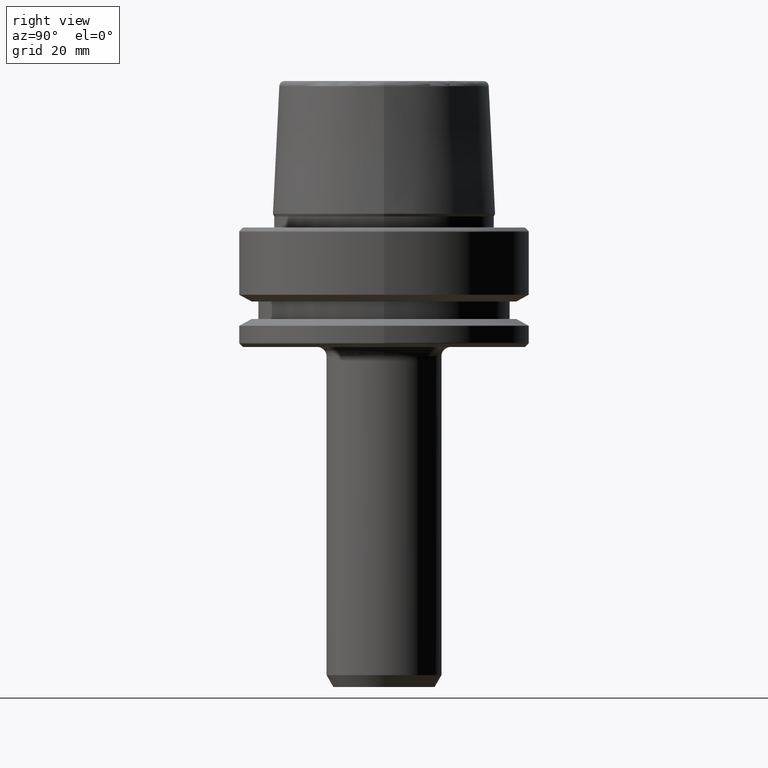
[diagram: clean part render]
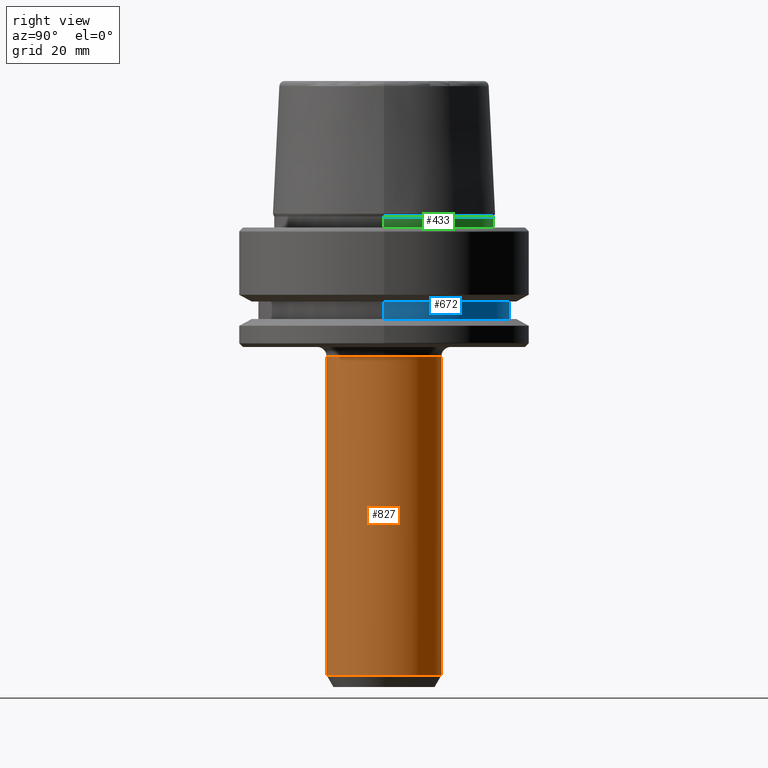
[diagram: same view with three faces highlighted in distinct colors, each labeled with its STEP entity id]
A machine part, right view with three faces highlighted in distinct colors.
Their STEP definitions:

[orange] entity #827 — the highlighted cylindrical surface (partial cylindrical patch) has radius 12.5 mm, axis along (-0, -0, -1).
#4 = VERTEX_POINT ( 'NONE', #817 ) ;
#117 = FACE_OUTER_BOUND ( 'NONE', #309, .T. ) ;
#132 = VECTOR ( 'NONE', #534, 1000.000000000000000 ) ;
#137 = DIRECTION ( 'NONE',  ( 0.0000000000000000000, 0.0000000000000000000, -1.000000000000000000 ) ) ;
#165 = DIRECTION ( 'NONE',  ( 0.0000000000000000000, 1.000000000000000000, 0.0000000000000000000 ) ) ;
#181 = VERTEX_POINT ( 'NONE', #1131 ) ;
#187 = CARTESIAN_POINT ( 'NONE',  ( 0.0000000000000000000, -4.964784320867598900E-017, -27.99999999999999600 ) ) ;
#188 = CIRCLE ( 'NONE', #872, 12.50000000000000000 ) ;
#261 = DIRECTION ( 'NONE',  ( -0.0000000000000000000, -2.482392160433822900E-017, -1.000000000000000000 ) ) ;
#269 = CARTESIAN_POINT ( 'NONE',  ( 0.0000000000000000000, 12.50000000000000000, -27.99999999999999600 ) ) ;
#309 = EDGE_LOOP ( 'NONE', ( #689, #843, #757, #357, #364 ) ) ;
#319 = AXIS2_PLACEMENT_3D ( 'NONE', #837, #755, #1254 ) ;
#357 = ORIENTED_EDGE ( 'NONE', *, *, #436, .F. ) ;
#364 = ORIENTED_EDGE ( 'NONE', *, *, #1138, .F. ) ;
#385 = DIRECTION ( 'NONE',  ( -0.0000000000000000000, -2.482392160433822900E-017, -1.000000000000000000 ) ) ;
#398 = LINE ( 'NONE', #550, #132 ) ;
#436 = EDGE_CURVE ( 'NONE', #587, #4, #447, .T. ) ;
#447 = CIRCLE ( 'NONE', #1048, 12.50000000000000200 ) ;
#534 = DIRECTION ( 'NONE',  ( -0.0000000000000000000, -2.482392160433822900E-017, -1.000000000000000000 ) ) ;
#550 = CARTESIAN_POINT ( 'NONE',  ( 1.530808498934191500E-015, -12.50000000000000200, -100.0000000000000000 ) ) ;
#587 = VERTEX_POINT ( 'NONE', #1227 ) ;
#596 = CYLINDRICAL_SURFACE ( 'NONE', #712, 12.50000000000000000 ) ;
#630 = EDGE_CURVE ( 'NONE', #797, #181, #188, .T. ) ;
#689 = ORIENTED_EDGE ( 'NONE', *, *, #630, .T. ) ;
#712 = AXIS2_PLACEMENT_3D ( 'NONE', #839, #385, #830 ) ;
#755 = DIRECTION ( 'NONE',  ( 0.0000000000000000000, 0.0000000000000000000, -1.000000000000000000 ) ) ;
#757 = ORIENTED_EDGE ( 'NONE', *, *, #975, .T. ) ;
#792 = CARTESIAN_POINT ( 'NONE',  ( 0.0000000000000000000, -1.772475758528297700E-015, -97.40192378864668400 ) ) ;
#797 = VERTEX_POINT ( 'NONE', #269 ) ;
#805 = CARTESIAN_POINT ( 'NONE',  ( 0.0000000000000000000, 12.49999999999999800, -100.0000000000000000 ) ) ;
#817 = CARTESIAN_POINT ( 'NONE',  ( 0.0000000000000000000, -12.50000000000000400, -97.40192378864668400 ) ) ;
#826 = CIRCLE ( 'NONE', #319, 12.50000000000000000 ) ;
#827 = ADVANCED_FACE ( 'NONE', ( #117 ), #596, .T. ) ;
#830 = DIRECTION ( 'NONE',  ( 0.0000000000000000000, 1.000000000000000000, 0.0000000000000000000 ) ) ;
#837 = CARTESIAN_POINT ( 'NONE',  ( 0.0000000000000000000, -4.964784320867598900E-017, -27.99999999999999600 ) ) ;
#839 = CARTESIAN_POINT ( 'NONE',  ( 0.0000000000000000000, -1.836970198721028800E-015, -100.0000000000000000 ) ) ;
#843 = ORIENTED_EDGE ( 'NONE', *, *, #1169, .T. ) ;
#872 = AXIS2_PLACEMENT_3D ( 'NONE', #187, #137, #1123 ) ;
#889 = VECTOR ( 'NONE', #985, 1000.000000000000000 ) ;
#975 = EDGE_CURVE ( 'NONE', #976, #4, #398, .T. ) ;
#976 = VERTEX_POINT ( 'NONE', #1081 ) ;
#985 = DIRECTION ( 'NONE',  ( -0.0000000000000000000, -2.482392160433822900E-017, -1.000000000000000000 ) ) ;
#1048 = AXIS2_PLACEMENT_3D ( 'NONE', #792, #261, #165 ) ;
#1081 = CARTESIAN_POINT ( 'NONE',  ( 1.530808498934191500E-015, -12.50000000000000000, -27.99999999999999600 ) ) ;
#1123 = DIRECTION ( 'NONE',  ( 1.000000000000000000, 0.0000000000000000000, 0.0000000000000000000 ) ) ;
#1131 = CARTESIAN_POINT ( 'NONE',  ( 12.50000000000000000, -4.964784320867598900E-017, -27.99999999999999600 ) ) ;
#1138 = EDGE_CURVE ( 'NONE', #797, #587, #1156, .T. ) ;
#1156 = LINE ( 'NONE', #805, #889 ) ;
#1169 = EDGE_CURVE ( 'NONE', #181, #976, #826, .T. ) ;
#1227 = CARTESIAN_POINT ( 'NONE',  ( 1.530808498934191700E-015, 12.50000000000000000, -97.40192378864668400 ) ) ;
#1254 = DIRECTION ( 'NONE',  ( 1.000000000000000000, 0.0000000000000000000, 0.0000000000000000000 ) ) ;

[blue] entity #672 — the highlighted cylindrical surface (partial cylindrical patch) has radius 27.5 mm, axis along (-0, -0, 1).
#14 = ORIENTED_EDGE ( 'NONE', *, *, #1178, .F. ) ;
#17 = VECTOR ( 'NONE', #163, 1000.000000000000000 ) ;
#22 = DIRECTION ( 'NONE',  ( 1.000000000000000000, 0.0000000000000000000, 0.0000000000000000000 ) ) ;
#52 = LINE ( 'NONE', #557, #17 ) ;
#53 = EDGE_LOOP ( 'NONE', ( #1097, #569, #533, #14 ) ) ;
#76 = VERTEX_POINT ( 'NONE', #720 ) ;
#154 = EDGE_CURVE ( 'NONE', #1124, #76, #272, .T. ) ;
#163 = DIRECTION ( 'NONE',  ( -0.0000000000000000000, -0.0000000000000000000, 1.000000000000000000 ) ) ;
#210 = AXIS2_PLACEMENT_3D ( 'NONE', #884, #625, #22 ) ;
#265 = DIRECTION ( 'NONE',  ( -0.0000000000000000000, -0.0000000000000000000, 1.000000000000000000 ) ) ;
#272 = CIRCLE ( 'NONE', #210, 27.49999999999999600 ) ;
#368 = FACE_OUTER_BOUND ( 'NONE', #53, .T. ) ;
#388 = DIRECTION ( 'NONE',  ( 1.000000000000000000, 0.0000000000000000000, 0.0000000000000000000 ) ) ;
#428 = CYLINDRICAL_SURFACE ( 'NONE', #1088, 27.49999999999999600 ) ;
#473 = LINE ( 'NONE', #1049, #1232 ) ;
#519 = CARTESIAN_POINT ( 'NONE',  ( 27.49999999999999600, 0.0000000000000000000, -16.10000000000001600 ) ) ;
#533 = ORIENTED_EDGE ( 'NONE', *, *, #154, .F. ) ;
#557 = CARTESIAN_POINT ( 'NONE',  ( 27.49999999999999600, 0.0000000000000000000, 78.96908074195309300 ) ) ;
#569 = ORIENTED_EDGE ( 'NONE', *, *, #1211, .T. ) ;
#607 = DIRECTION ( 'NONE',  ( -0.0000000000000000000, -0.0000000000000000000, 1.000000000000000000 ) ) ;
#625 = DIRECTION ( 'NONE',  ( -0.0000000000000000000, -0.0000000000000000000, 1.000000000000000000 ) ) ;
#649 = CIRCLE ( 'NONE', #916, 27.49999999999999600 ) ;
#652 = VERTEX_POINT ( 'NONE', #718 ) ;
#672 = ADVANCED_FACE ( 'NONE', ( #368 ), #428, .T. ) ;
#675 = CARTESIAN_POINT ( 'NONE',  ( 0.0000000000000000000, 0.0000000000000000000, -19.90000000000001600 ) ) ;
#718 = CARTESIAN_POINT ( 'NONE',  ( -27.49999999999999600, 3.367778697655220900E-015, -19.90000000000001600 ) ) ;
#720 = CARTESIAN_POINT ( 'NONE',  ( -27.49999999999999600, 3.367778697655220900E-015, -16.10000000000001600 ) ) ;
#736 = CARTESIAN_POINT ( 'NONE',  ( 27.49999999999999600, 0.0000000000000000000, -19.90000000000001600 ) ) ;
#849 = VERTEX_POINT ( 'NONE', #736 ) ;
#884 = CARTESIAN_POINT ( 'NONE',  ( 0.0000000000000000000, 0.0000000000000000000, -16.10000000000001600 ) ) ;
#916 = AXIS2_PLACEMENT_3D ( 'NONE', #675, #964, #388 ) ;
#964 = DIRECTION ( 'NONE',  ( -0.0000000000000000000, -0.0000000000000000000, 1.000000000000000000 ) ) ;
#1049 = CARTESIAN_POINT ( 'NONE',  ( -27.49999999999999600, 3.367778697655220900E-015, 78.96908074195309300 ) ) ;
#1088 = AXIS2_PLACEMENT_3D ( 'NONE', #1116, #607, #1098 ) ;
#1097 = ORIENTED_EDGE ( 'NONE', *, *, #1133, .T. ) ;
#1098 = DIRECTION ( 'NONE',  ( 1.000000000000000000, 0.0000000000000000000, 0.0000000000000000000 ) ) ;
#1116 = CARTESIAN_POINT ( 'NONE',  ( 0.0000000000000000000, 0.0000000000000000000, 78.96908074195309300 ) ) ;
#1124 = VERTEX_POINT ( 'NONE', #519 ) ;
#1133 = EDGE_CURVE ( 'NONE', #849, #652, #649, .T. ) ;
#1178 = EDGE_CURVE ( 'NONE', #849, #1124, #52, .T. ) ;
#1211 = EDGE_CURVE ( 'NONE', #652, #76, #473, .T. ) ;
#1232 = VECTOR ( 'NONE', #265, 1000.000000000000000 ) ;

[green] entity #433 — the highlighted cylindrical surface (partial cylindrical patch) has radius 23.89 mm, axis along (-0, -0, 1).
#32 = AXIS2_PLACEMENT_3D ( 'NONE', #1020, #438, #418 ) ;
#58 = CARTESIAN_POINT ( 'NONE',  ( 23.89000000000000100, 0.0000000000000000000, 2.398838415132276100 ) ) ;
#127 = CARTESIAN_POINT ( 'NONE',  ( 23.89000000000000400, 0.0000000000000000000, 0.1312552021302954000 ) ) ;
#155 = ORIENTED_EDGE ( 'NONE', *, *, #1141, .F. ) ;
#215 = EDGE_CURVE ( 'NONE', #323, #1174, #260, .T. ) ;
#260 = CIRCLE ( 'NONE', #479, 23.89000000000000400 ) ;
#266 = EDGE_CURVE ( 'NONE', #1174, #722, #929, .T. ) ;
#284 = DIRECTION ( 'NONE',  ( 1.000000000000000000, 0.0000000000000000000, 0.0000000000000000000 ) ) ;
#323 = VERTEX_POINT ( 'NONE', #127 ) ;
#343 = ORIENTED_EDGE ( 'NONE', *, *, #266, .T. ) ;
#362 = CARTESIAN_POINT ( 'NONE',  ( 0.0000000000000000000, 0.0000000000000000000, 78.96908074195309300 ) ) ;
#390 = DIRECTION ( 'NONE',  ( -0.0000000000000000000, -0.0000000000000000000, 1.000000000000000000 ) ) ;
#392 = CARTESIAN_POINT ( 'NONE',  ( -23.89000000000000100, 2.925681203163027000E-015, 78.96908074195309300 ) ) ;
#418 = DIRECTION ( 'NONE',  ( 1.000000000000000000, 0.0000000000000000000, 0.0000000000000000000 ) ) ;
#433 = ADVANCED_FACE ( 'NONE', ( #1218 ), #1190, .T. ) ;
#438 = DIRECTION ( 'NONE',  ( -0.0000000000000000000, -0.0000000000000000000, 1.000000000000000000 ) ) ;
#474 = AXIS2_PLACEMENT_3D ( 'NONE', #362, #954, #284 ) ;
#479 = AXIS2_PLACEMENT_3D ( 'NONE', #1104, #873, #776 ) ;
#620 = LINE ( 'NONE', #967, #1120 ) ;
#657 = VERTEX_POINT ( 'NONE', #58 ) ;
#677 = ORIENTED_EDGE ( 'NONE', *, *, #1100, .F. ) ;
#703 = VECTOR ( 'NONE', #1083, 1000.000000000000000 ) ;
#722 = VERTEX_POINT ( 'NONE', #1084 ) ;
#768 = CIRCLE ( 'NONE', #32, 23.89000000000000100 ) ;
#776 = DIRECTION ( 'NONE',  ( 1.000000000000000000, 0.0000000000000000000, 0.0000000000000000000 ) ) ;
#811 = EDGE_LOOP ( 'NONE', ( #1080, #343, #677, #155 ) ) ;
#873 = DIRECTION ( 'NONE',  ( -0.0000000000000000000, -0.0000000000000000000, 1.000000000000000000 ) ) ;
#907 = CARTESIAN_POINT ( 'NONE',  ( -23.89000000000000400, 2.961613815265650600E-015, 0.1312552021302954000 ) ) ;
#929 = LINE ( 'NONE', #392, #703 ) ;
#954 = DIRECTION ( 'NONE',  ( -0.0000000000000000000, -0.0000000000000000000, 1.000000000000000000 ) ) ;
#967 = CARTESIAN_POINT ( 'NONE',  ( 23.89000000000000100, 0.0000000000000000000, 78.96908074195309300 ) ) ;
#1020 = CARTESIAN_POINT ( 'NONE',  ( 0.0000000000000000000, 0.0000000000000000000, 2.398838415132276100 ) ) ;
#1080 = ORIENTED_EDGE ( 'NONE', *, *, #215, .T. ) ;
#1083 = DIRECTION ( 'NONE',  ( -0.0000000000000000000, -0.0000000000000000000, 1.000000000000000000 ) ) ;
#1084 = CARTESIAN_POINT ( 'NONE',  ( -23.89000000000000100, 2.942846235451747500E-015, 2.398838415132276100 ) ) ;
#1100 = EDGE_CURVE ( 'NONE', #657, #722, #768, .T. ) ;
#1104 = CARTESIAN_POINT ( 'NONE',  ( 0.0000000000000000000, 0.0000000000000000000, 0.1312552021302954000 ) ) ;
#1120 = VECTOR ( 'NONE', #390, 1000.000000000000000 ) ;
#1141 = EDGE_CURVE ( 'NONE', #323, #657, #620, .T. ) ;
#1174 = VERTEX_POINT ( 'NONE', #907 ) ;
#1190 = CYLINDRICAL_SURFACE ( 'NONE', #474, 23.89000000000000100 ) ;
#1218 = FACE_OUTER_BOUND ( 'NONE', #811, .T. ) ;